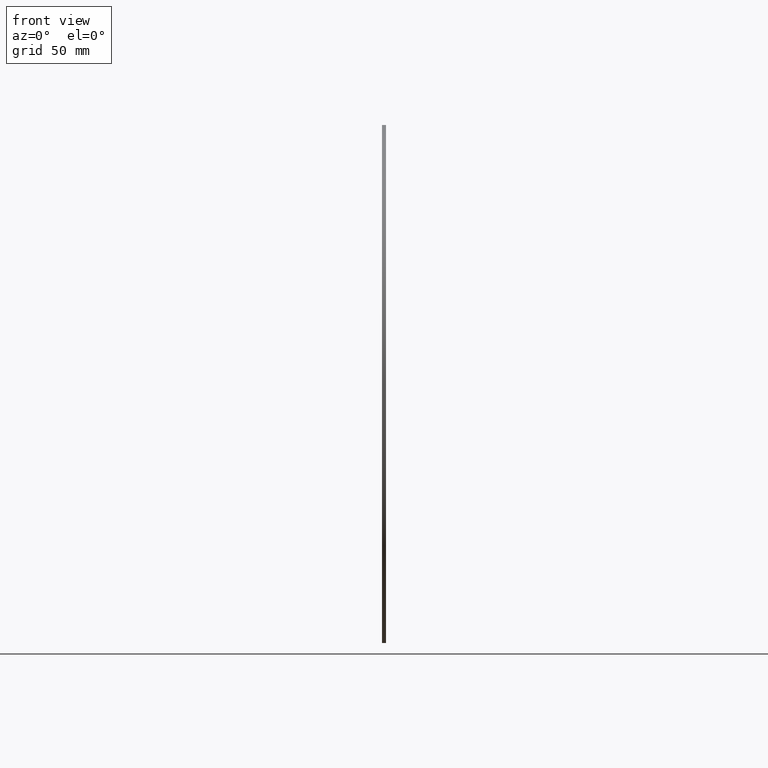
[diagram: clean part render]
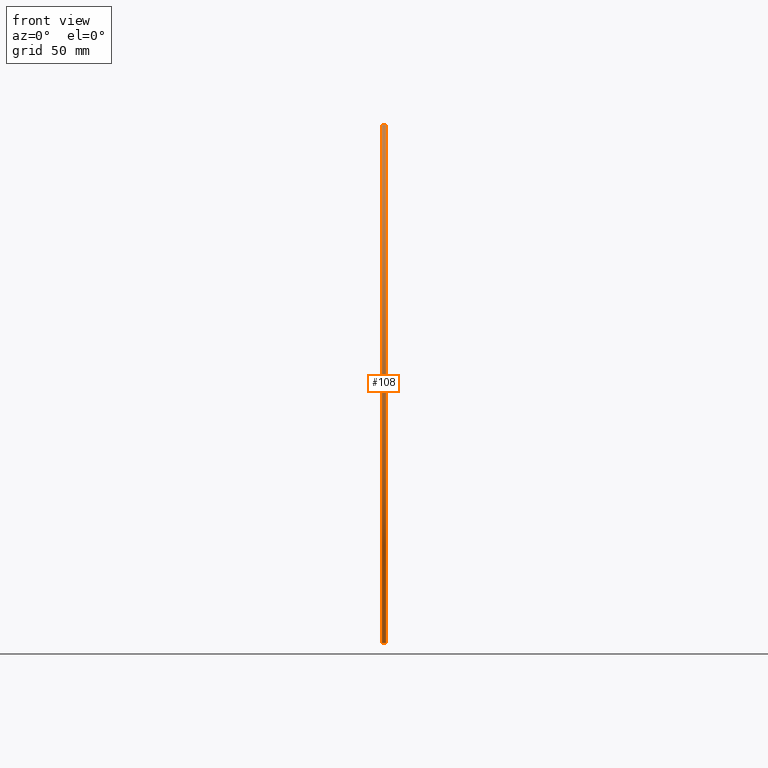
[diagram: same view with one face highlighted and labeled with its STEP entity id]
A machine part, front view. The second image highlights one B-rep face of the part: STEP entity #108.
In plain terms, the highlighted cylindrical surface (partial cylindrical patch) has radius 100 mm, axis along (1, 0, 0).
Its self-contained STEP definition (entity closure, byte-faithful):
#73 = CARTESIAN_POINT ( 'NONE',  ( 0.000000000000000000, 0.000000000000000000, 0.000000000000000000 ) ) ;
#87 = VECTOR ( 'NONE', #398, 1000.000000000000000 ) ;
#108 = ADVANCED_FACE ( 'NONE', ( #437 ), #699, .T. ) ;
#118 = VECTOR ( 'NONE', #619, 1000.000000000000000 ) ;
#121 = CARTESIAN_POINT ( 'NONE',  ( -1.500000000000000000, 0.000000000000000000, 0.000000000000000000 ) ) ;
#166 = AXIS2_PLACEMENT_3D ( 'NONE', #73, #210, #582 ) ;
#185 = ORIENTED_EDGE ( 'NONE', *, *, #527, .T. ) ;
#193 = CIRCLE ( 'NONE', #408, 100.0000000000000000 ) ;
#205 = LINE ( 'NONE', #516, #87 ) ;
#210 = DIRECTION ( 'NONE',  ( 1.000000000000000000, 0.000000000000000000, 0.000000000000000000 ) ) ;
#213 = VERTEX_POINT ( 'NONE', #301 ) ;
#250 = EDGE_LOOP ( 'NONE', ( #775, #633, #185, #404 ) ) ;
#251 = DIRECTION ( 'NONE',  ( 0.000000000000000000, 0.000000000000000000, -1.000000000000000000 ) ) ;
#301 = CARTESIAN_POINT ( 'NONE',  ( -1.500000000000000000, 1.224646799147353217E-14, 100.0000000000000000 ) ) ;
#305 = CARTESIAN_POINT ( 'NONE',  ( -1.500000000000000000, 0.000000000000000000, 0.000000000000000000 ) ) ;
#339 = EDGE_CURVE ( 'NONE', #448, #700, #375, .T. ) ;
#344 = CARTESIAN_POINT ( 'NONE',  ( 0.000000000000000000, 1.224646799147353217E-14, 100.0000000000000000 ) ) ;
#375 = CIRCLE ( 'NONE', #166, 100.0000000000000000 ) ;
#383 = EDGE_CURVE ( 'NONE', #213, #448, #205, .T. ) ;
#393 = CARTESIAN_POINT ( 'NONE',  ( 0.000000000000000000, 0.000000000000000000, -100.0000000000000000 ) ) ;
#398 = DIRECTION ( 'NONE',  ( 1.000000000000000000, 0.000000000000000000, 0.000000000000000000 ) ) ;
#404 = ORIENTED_EDGE ( 'NONE', *, *, #339, .F. ) ;
#408 = AXIS2_PLACEMENT_3D ( 'NONE', #305, #831, #251 ) ;
#437 = FACE_OUTER_BOUND ( 'NONE', #250, .T. ) ;
#448 = VERTEX_POINT ( 'NONE', #344 ) ;
#501 = LINE ( 'NONE', #631, #118 ) ;
#516 = CARTESIAN_POINT ( 'NONE',  ( -1.500000000000000000, 1.224646799147353217E-14, 100.0000000000000000 ) ) ;
#519 = CARTESIAN_POINT ( 'NONE',  ( -1.500000000000000000, 0.000000000000000000, -100.0000000000000000 ) ) ;
#527 = EDGE_CURVE ( 'NONE', #765, #700, #501, .T. ) ;
#582 = DIRECTION ( 'NONE',  ( 0.000000000000000000, 0.000000000000000000, -1.000000000000000000 ) ) ;
#619 = DIRECTION ( 'NONE',  ( 1.000000000000000000, 0.000000000000000000, 0.000000000000000000 ) ) ;
#631 = CARTESIAN_POINT ( 'NONE',  ( -1.500000000000000000, 0.000000000000000000, -100.0000000000000000 ) ) ;
#633 = ORIENTED_EDGE ( 'NONE', *, *, #678, .T. ) ;
#678 = EDGE_CURVE ( 'NONE', #213, #765, #193, .T. ) ;
#688 = DIRECTION ( 'NONE',  ( 0.000000000000000000, 0.000000000000000000, -1.000000000000000000 ) ) ;
#699 = CYLINDRICAL_SURFACE ( 'NONE', #815, 100.0000000000000000 ) ;
#700 = VERTEX_POINT ( 'NONE', #393 ) ;
#756 = DIRECTION ( 'NONE',  ( 1.000000000000000000, 0.000000000000000000, 0.000000000000000000 ) ) ;
#765 = VERTEX_POINT ( 'NONE', #519 ) ;
#775 = ORIENTED_EDGE ( 'NONE', *, *, #383, .F. ) ;
#815 = AXIS2_PLACEMENT_3D ( 'NONE', #121, #756, #688 ) ;
#831 = DIRECTION ( 'NONE',  ( 1.000000000000000000, 0.000000000000000000, 0.000000000000000000 ) ) ;